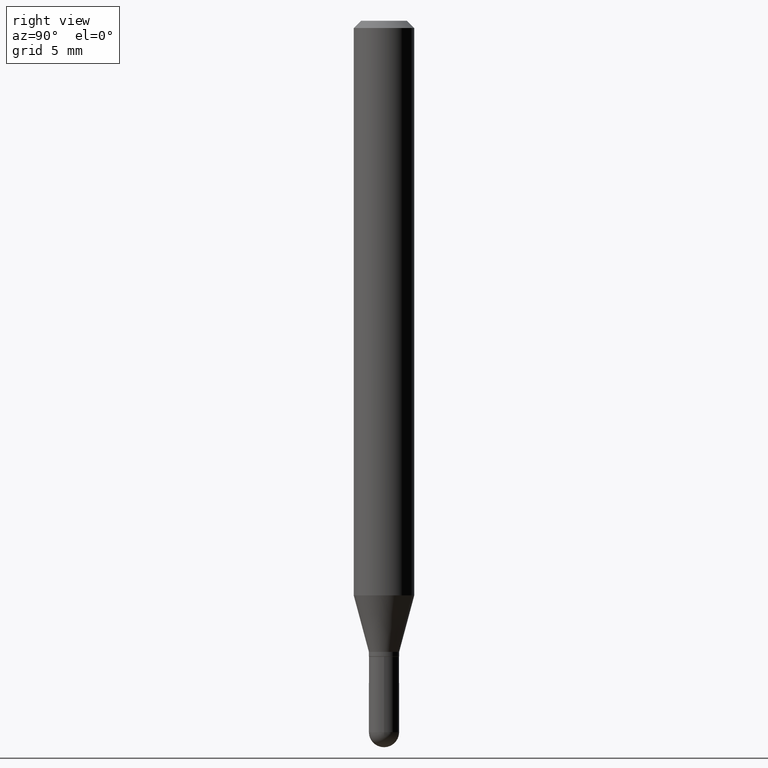
[diagram: clean part render]
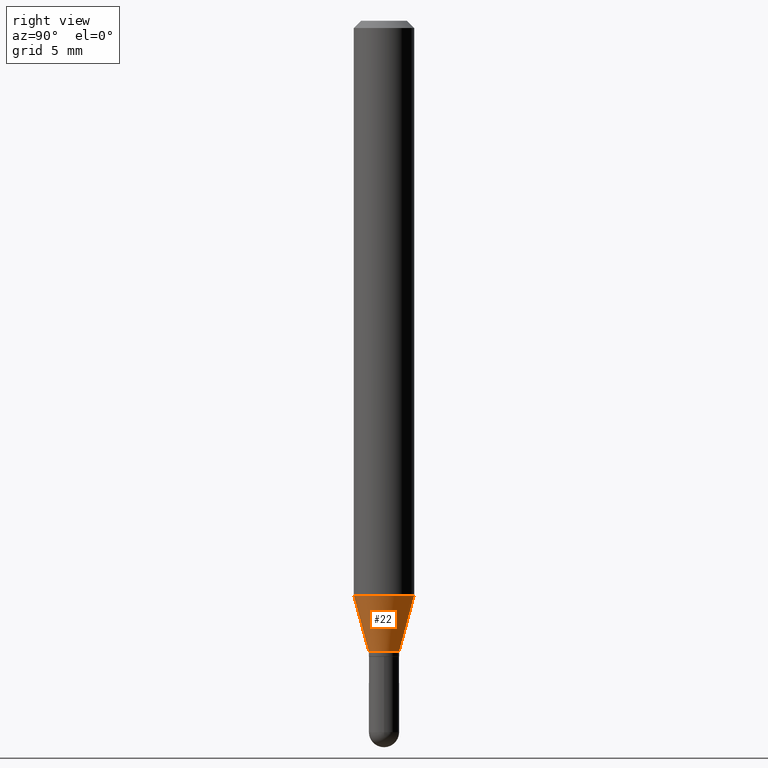
[diagram: same view with one face highlighted and labeled with its STEP entity id]
A machine part, right view. The second image highlights one B-rep face of the part: STEP entity #22.
In plain terms, the highlighted conical surface has half-angle 15 deg.
Its self-contained STEP definition (entity closure, byte-faithful):
#9 = CIRCLE ( 'NONE', #63, 0.06249999999999999306 ) ;
#17 = CARTESIAN_POINT ( 'NONE',  ( 4.440892098500914096E-16, 0.06249999999999582279, -1.186373412263470595 ) ) ;
#22 = ADVANCED_FACE ( 'NONE', ( #291 ), #478, .T. ) ;
#26 = VECTOR ( 'NONE', #444, 39.37007874015748143 ) ;
#48 = DIRECTION ( 'NONE',  ( -6.982962677686265922E-15, -1.000000000000000000, 0.000000000000000000 ) ) ;
#51 = EDGE_LOOP ( 'NONE', ( #195, #66, #320, #110 ) ) ;
#54 = DIRECTION ( 'NONE',  ( -6.982962677686265922E-15, -1.000000000000000000, 0.000000000000000000 ) ) ;
#57 = VECTOR ( 'NONE', #451, 39.37007874015748143 ) ;
#62 = CARTESIAN_POINT ( 'NONE',  ( 2.220446049250581294E-16, 0.03124999999999474032, -1.302999999999999714 ) ) ;
#63 = AXIS2_PLACEMENT_3D ( 'NONE', #358, #188, #416 ) ;
#66 = ORIENTED_EDGE ( 'NONE', *, *, #144, .T. ) ;
#106 = CARTESIAN_POINT ( 'NONE',  ( 3.330669073875748681E-16, 0.03124999999999473685, -1.302999999999999714 ) ) ;
#110 = ORIENTED_EDGE ( 'NONE', *, *, #508, .F. ) ;
#125 = CARTESIAN_POINT ( 'NONE',  ( 3.190294038476148960E-29, -4.543889365975361704E-15, -1.302999999999999714 ) ) ;
#142 = CIRCLE ( 'NONE', #422, 0.03124999999999928529 ) ;
#144 = EDGE_CURVE ( 'NONE', #149, #424, #412, .T. ) ;
#149 = VERTEX_POINT ( 'NONE', #106 ) ;
#159 = CARTESIAN_POINT ( 'NONE',  ( -4.364351673553627281E-16, -0.06250000000000416334, -1.186373412263470373 ) ) ;
#188 = DIRECTION ( 'NONE',  ( -2.448422132368495575E-29, 3.487252007655688059E-15, 1.000000000000000000 ) ) ;
#195 = ORIENTED_EDGE ( 'NONE', *, *, #439, .T. ) ;
#198 = DIRECTION ( 'NONE',  ( -2.448422132368495575E-29, 3.487252007655688059E-15, 1.000000000000000000 ) ) ;
#231 = EDGE_CURVE ( 'NONE', #481, #424, #9, .T. ) ;
#237 = VERTEX_POINT ( 'NONE', #275 ) ;
#248 = LINE ( 'NONE', #251, #26 ) ;
#251 = CARTESIAN_POINT ( 'NONE',  ( -2.182175836776589308E-16, -0.03125000000000383027, -1.302999999999999714 ) ) ;
#275 = CARTESIAN_POINT ( 'NONE',  ( -2.182175836776589308E-16, -0.03125000000000383027, -1.302999999999999714 ) ) ;
#291 = FACE_OUTER_BOUND ( 'NONE', #51, .T. ) ;
#320 = ORIENTED_EDGE ( 'NONE', *, *, #231, .F. ) ;
#353 = AXIS2_PLACEMENT_3D ( 'NONE', #488, #398, #48 ) ;
#358 = CARTESIAN_POINT ( 'NONE',  ( 2.904742919839414695E-29, -4.137183063745116506E-15, -1.186373412263470595 ) ) ;
#398 = DIRECTION ( 'NONE',  ( -2.448422132368495575E-29, 3.487252007655688059E-15, 1.000000000000000000 ) ) ;
#412 = LINE ( 'NONE', #62, #57 ) ;
#416 = DIRECTION ( 'NONE',  ( -6.982962677686265922E-15, -1.000000000000000000, 4.370956789862821938E-15 ) ) ;
#422 = AXIS2_PLACEMENT_3D ( 'NONE', #125, #198, #54 ) ;
#424 = VERTEX_POINT ( 'NONE', #17 ) ;
#439 = EDGE_CURVE ( 'NONE', #237, #149, #142, .T. ) ;
#444 = DIRECTION ( 'NONE',  ( -1.807323732225336450E-15, -0.2588190451025190741, 0.9659258262890687563 ) ) ;
#451 = DIRECTION ( 'NONE',  ( 1.839019923739606626E-15, 0.2588190451025258465, 0.9659258262890669799 ) ) ;
#478 = CONICAL_SURFACE ( 'NONE', #353, 0.03124999999999928529, 0.2617993877991511842 ) ;
#481 = VERTEX_POINT ( 'NONE', #159 ) ;
#488 = CARTESIAN_POINT ( 'NONE',  ( 3.190294038476148960E-29, -4.543889365975361704E-15, -1.302999999999999714 ) ) ;
#508 = EDGE_CURVE ( 'NONE', #237, #481, #248, .T. ) ;